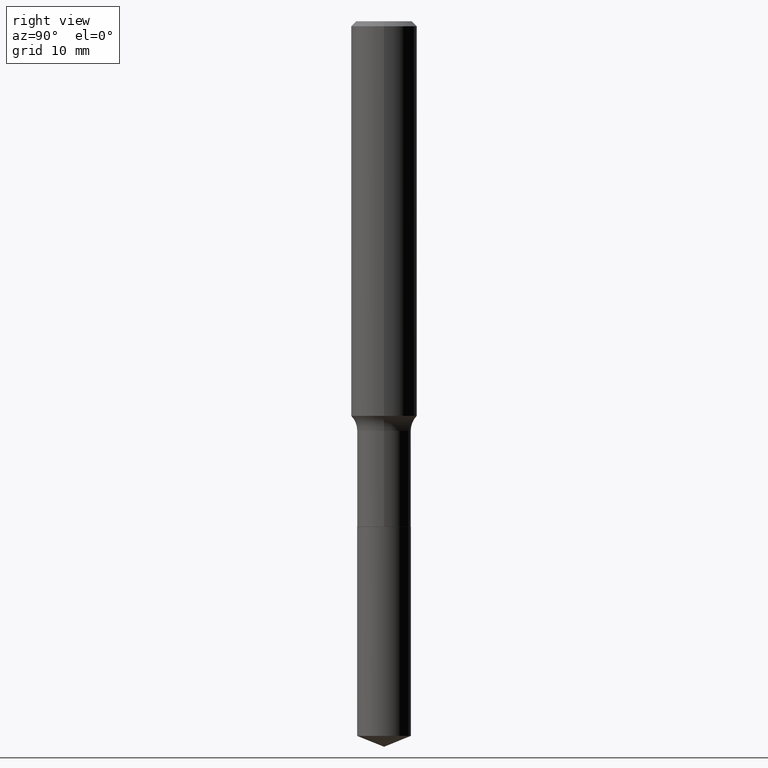
[diagram: clean part render]
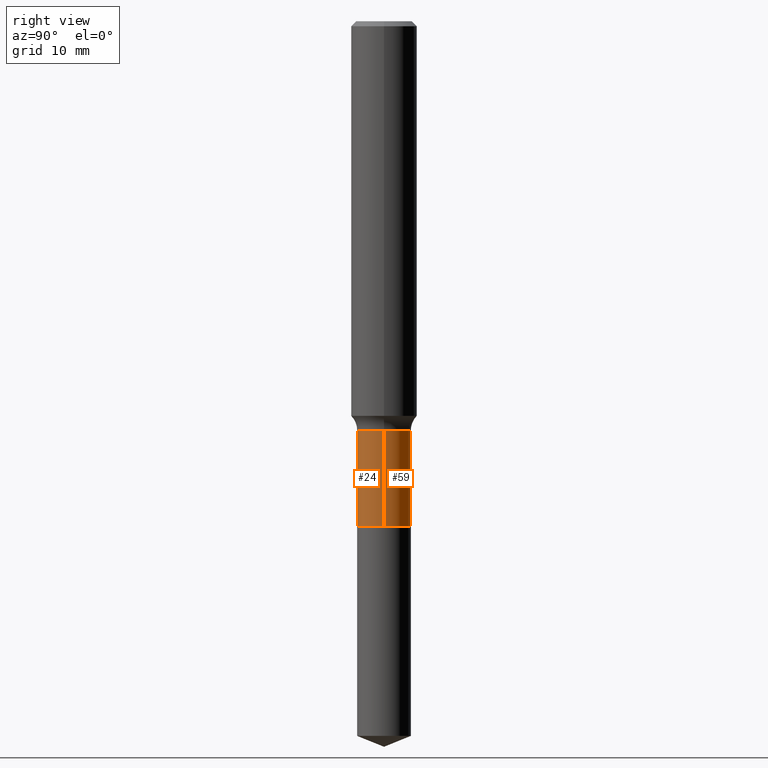
[diagram: same view with one multi-face feature highlighted, each face labeled with its STEP entity id]
A machine part, right view. The highlighted faces form ONE feature: a constant-radius fillet chain: 2 tangent blend faces with common blend radius 2.4498 mm. The faces share edges in the B-rep.
Their STEP definitions:
[1] entity #24 (Cylinder):
#24 = ADVANCED_FACE ( 'NONE', ( #468 ), #365, .T. ) ;
#44 = CIRCLE ( 'NONE', #330, 0.09644999999999995244 ) ;
#70 = CARTESIAN_POINT ( 'NONE',  ( -0.09644999999999996632, 6.853184686406163899E-16, -4.744312894550855181E-30 ) ) ;
#72 = EDGE_LOOP ( 'NONE', ( #146, #287, #419, #202 ) ) ;
#75 = CARTESIAN_POINT ( 'NONE',  ( -0.09644999999999995244, -5.036521149455529617E-15, -1.467099999999999849 ) ) ;
#94 = DIRECTION ( 'NONE',  ( -2.445468806185136597E-29, 3.491481338843145583E-15, 1.000000000000000000 ) ) ;
#100 = VERTEX_POINT ( 'NONE', #75 ) ;
#105 = CARTESIAN_POINT ( 'NONE',  ( 0.09644999999999996632, -6.994833714238355023E-15, -1.810499999999999998 ) ) ;
#124 = AXIS2_PLACEMENT_3D ( 'NONE', #470, #297, #142 ) ;
#130 = CARTESIAN_POINT ( 'NONE',  ( -0.09644999999999996632, -5.036521149455529617E-15, -1.810499999999999998 ) ) ;
#142 = DIRECTION ( 'NONE',  ( 1.000000000000000000, -6.982962677686267499E-15, 4.876176775795936353E-29 ) ) ;
#146 = ORIENTED_EDGE ( 'NONE', *, *, #292, .F. ) ;
#153 = AXIS2_PLACEMENT_3D ( 'NONE', #464, #94, #220 ) ;
#171 = CARTESIAN_POINT ( 'NONE',  ( 3.587747285554213356E-29, -5.122352272216778509E-15, -1.467099999999999849 ) ) ;
#179 = LINE ( 'NONE', #319, #439 ) ;
#193 = EDGE_CURVE ( 'NONE', #276, #399, #381, .T. ) ;
#202 = ORIENTED_EDGE ( 'NONE', *, *, #289, .F. ) ;
#220 = DIRECTION ( 'NONE',  ( 1.000000000000000000, -6.982962677686265922E-15, 0.000000000000000000 ) ) ;
#233 = EDGE_CURVE ( 'NONE', #399, #360, #179, .T. ) ;
#276 = VERTEX_POINT ( 'NONE', #130 ) ;
#287 = ORIENTED_EDGE ( 'NONE', *, *, #193, .T. ) ;
#289 = EDGE_CURVE ( 'NONE', #100, #360, #44, .T. ) ;
#292 = EDGE_CURVE ( 'NONE', #276, #100, #471, .T. ) ;
#296 = VECTOR ( 'NONE', #440, 39.37007874015748143 ) ;
#297 = DIRECTION ( 'NONE',  ( -2.445468806185136597E-29, 3.491481338843145583E-15, 1.000000000000000000 ) ) ;
#319 = CARTESIAN_POINT ( 'NONE',  ( 0.09644999999999996632, -6.735067502628402357E-16, 4.703072500255178901E-30 ) ) ;
#330 = AXIS2_PLACEMENT_3D ( 'NONE', #171, #469, #404 ) ;
#360 = VERTEX_POINT ( 'NONE', #374 ) ;
#365 = CYLINDRICAL_SURFACE ( 'NONE', #124, 0.09644999999999996632 ) ;
#374 = CARTESIAN_POINT ( 'NONE',  ( 0.09644999999999995244, -5.795859022479618251E-15, -1.467099999999999849 ) ) ;
#381 = CIRCLE ( 'NONE', #153, 0.09644999999999996632 ) ;
#394 = DIRECTION ( 'NONE',  ( -2.445468806185136877E-29, 3.491481338843145188E-15, 1.000000000000000000 ) ) ;
#399 = VERTEX_POINT ( 'NONE', #105 ) ;
#404 = DIRECTION ( 'NONE',  ( 1.000000000000000000, -6.982962677686267499E-15, 0.000000000000000000 ) ) ;
#419 = ORIENTED_EDGE ( 'NONE', *, *, #233, .T. ) ;
#439 = VECTOR ( 'NONE', #394, 39.37007874015748143 ) ;
#440 = DIRECTION ( 'NONE',  ( -2.445468806185136877E-29, 3.491481338843145188E-15, 1.000000000000000000 ) ) ;
#464 = CARTESIAN_POINT ( 'NONE',  ( 4.427521273598189436E-29, -6.321326963975514491E-15, -1.810499999999999998 ) ) ;
#468 = FACE_OUTER_BOUND ( 'NONE', #72, .T. ) ;
#469 = DIRECTION ( 'NONE',  ( -2.445468806185136597E-29, 3.491481338843145583E-15, 1.000000000000000000 ) ) ;
#470 = CARTESIAN_POINT ( 'NONE',  ( 0.000000000000000000, 0.000000000000000000, 0.000000000000000000 ) ) ;
#471 = LINE ( 'NONE', #70, #296 ) ;
[2] entity #59 (Cylinder):
#59 = ADVANCED_FACE ( 'NONE', ( #427 ), #93, .T. ) ;
#60 = CARTESIAN_POINT ( 'NONE',  ( 0.000000000000000000, 0.000000000000000000, 0.000000000000000000 ) ) ;
#70 = CARTESIAN_POINT ( 'NONE',  ( -0.09644999999999996632, 6.853184686406163899E-16, -4.744312894550855181E-30 ) ) ;
#75 = CARTESIAN_POINT ( 'NONE',  ( -0.09644999999999995244, -5.036521149455529617E-15, -1.467099999999999849 ) ) ;
#93 = CYLINDRICAL_SURFACE ( 'NONE', #280, 0.09644999999999996632 ) ;
#100 = VERTEX_POINT ( 'NONE', #75 ) ;
#105 = CARTESIAN_POINT ( 'NONE',  ( 0.09644999999999996632, -6.994833714238355023E-15, -1.810499999999999998 ) ) ;
#113 = DIRECTION ( 'NONE',  ( 1.000000000000000000, -6.982962677686267499E-15, 0.000000000000000000 ) ) ;
#130 = CARTESIAN_POINT ( 'NONE',  ( -0.09644999999999996632, -5.036521149455529617E-15, -1.810499999999999998 ) ) ;
#148 = EDGE_CURVE ( 'NONE', #399, #276, #317, .T. ) ;
#175 = DIRECTION ( 'NONE',  ( -2.445468806185136597E-29, 3.491481338843145583E-15, 1.000000000000000000 ) ) ;
#179 = LINE ( 'NONE', #319, #439 ) ;
#190 = ORIENTED_EDGE ( 'NONE', *, *, #148, .T. ) ;
#211 = EDGE_LOOP ( 'NONE', ( #190, #466, #263, #474 ) ) ;
#213 = CARTESIAN_POINT ( 'NONE',  ( 4.427521273598189436E-29, -6.321326963975514491E-15, -1.810499999999999998 ) ) ;
#233 = EDGE_CURVE ( 'NONE', #399, #360, #179, .T. ) ;
#255 = DIRECTION ( 'NONE',  ( -2.445468806185136597E-29, 3.491481338843145583E-15, 1.000000000000000000 ) ) ;
#263 = ORIENTED_EDGE ( 'NONE', *, *, #328, .F. ) ;
#276 = VERTEX_POINT ( 'NONE', #130 ) ;
#280 = AXIS2_PLACEMENT_3D ( 'NONE', #60, #255, #395 ) ;
#288 = AXIS2_PLACEMENT_3D ( 'NONE', #213, #175, #359 ) ;
#292 = EDGE_CURVE ( 'NONE', #276, #100, #471, .T. ) ;
#296 = VECTOR ( 'NONE', #440, 39.37007874015748143 ) ;
#301 = DIRECTION ( 'NONE',  ( -2.445468806185136597E-29, 3.491481338843145583E-15, 1.000000000000000000 ) ) ;
#311 = AXIS2_PLACEMENT_3D ( 'NONE', #476, #301, #113 ) ;
#317 = CIRCLE ( 'NONE', #288, 0.09644999999999996632 ) ;
#319 = CARTESIAN_POINT ( 'NONE',  ( 0.09644999999999996632, -6.735067502628402357E-16, 4.703072500255178901E-30 ) ) ;
#328 = EDGE_CURVE ( 'NONE', #360, #100, #351, .T. ) ;
#351 = CIRCLE ( 'NONE', #311, 0.09644999999999995244 ) ;
#359 = DIRECTION ( 'NONE',  ( 1.000000000000000000, -6.982962677686265922E-15, 0.000000000000000000 ) ) ;
#360 = VERTEX_POINT ( 'NONE', #374 ) ;
#374 = CARTESIAN_POINT ( 'NONE',  ( 0.09644999999999995244, -5.795859022479618251E-15, -1.467099999999999849 ) ) ;
#394 = DIRECTION ( 'NONE',  ( -2.445468806185136877E-29, 3.491481338843145188E-15, 1.000000000000000000 ) ) ;
#395 = DIRECTION ( 'NONE',  ( 1.000000000000000000, -6.982962677686267499E-15, 4.876176775795936353E-29 ) ) ;
#399 = VERTEX_POINT ( 'NONE', #105 ) ;
#427 = FACE_OUTER_BOUND ( 'NONE', #211, .T. ) ;
#439 = VECTOR ( 'NONE', #394, 39.37007874015748143 ) ;
#440 = DIRECTION ( 'NONE',  ( -2.445468806185136877E-29, 3.491481338843145188E-15, 1.000000000000000000 ) ) ;
#466 = ORIENTED_EDGE ( 'NONE', *, *, #292, .T. ) ;
#471 = LINE ( 'NONE', #70, #296 ) ;
#474 = ORIENTED_EDGE ( 'NONE', *, *, #233, .F. ) ;
#476 = CARTESIAN_POINT ( 'NONE',  ( 3.587747285554213356E-29, -5.122352272216778509E-15, -1.467099999999999849 ) ) ;